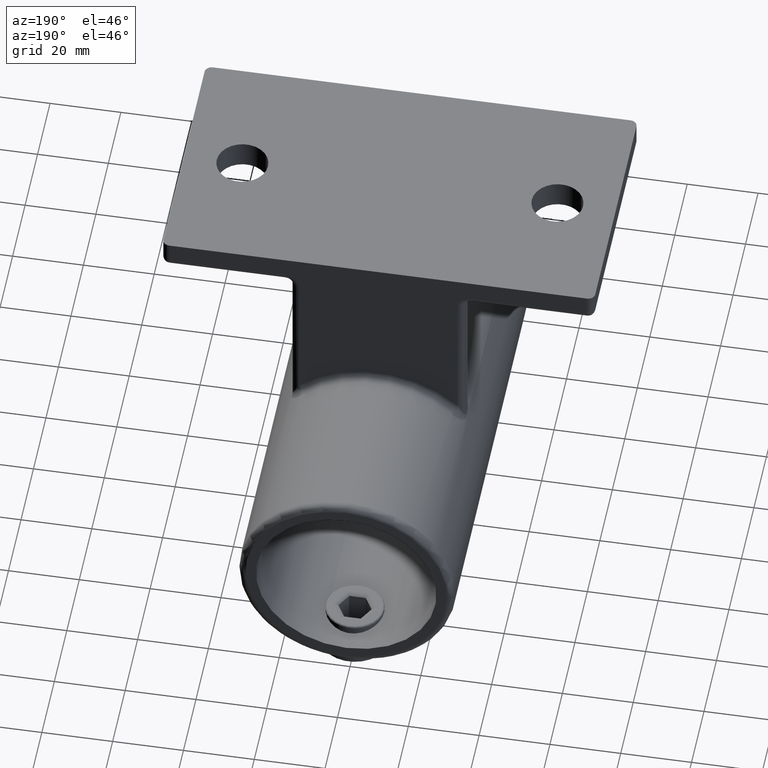
[diagram: clean part render]
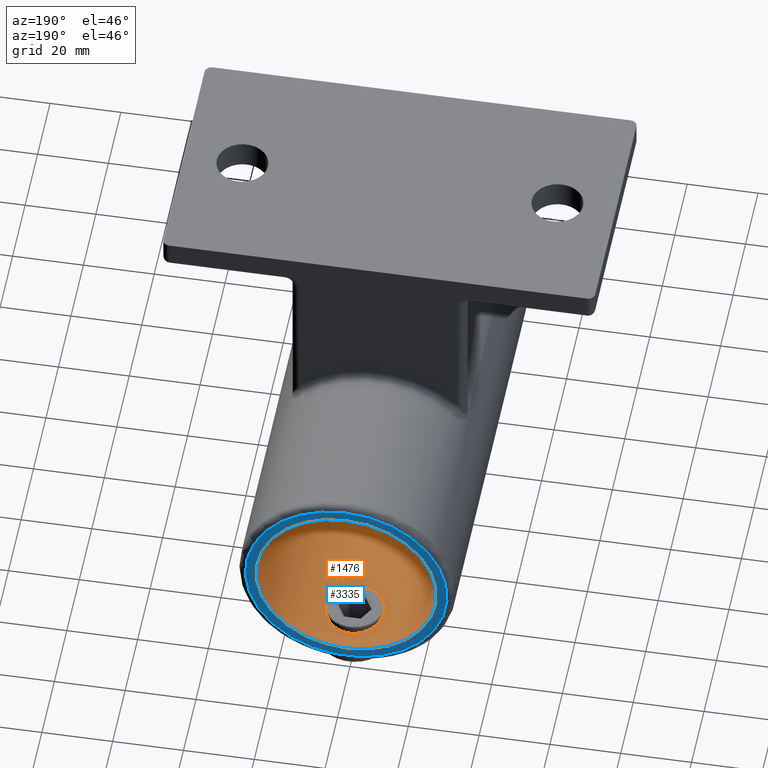
[diagram: same view with the hole feature highlighted: cylindrical wall and planar end face, labeled with their STEP entity ids]
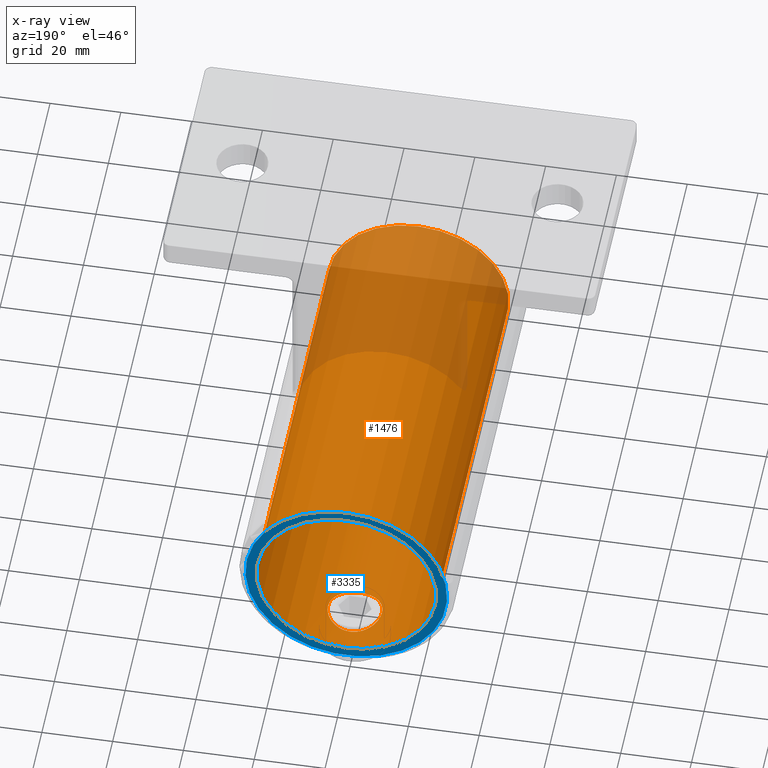
[diagram: x-ray of the same camera — body ghosted, the hole faces saturated]
A machine part, auxiliary view. The highlighted faces form one hole feature of diameter 51 mm: the cylindrical wall (entity #1476, orange) and its adjacent planar end face (entity #3335, blue) — they share a circular edge in the B-rep.
The next image is the same camera in x-ray (body ghosted, the hole faces saturated) — the bore reads through the body.
Wall:
#15 = CARTESIAN_POINT ( 'NONE',  ( 7.624891612867020108, -20.74700275049473319, -89.33333162361378754 ) ) ;
#30 = CARTESIAN_POINT ( 'NONE',  ( -0.9974324180357665437, -28.57606539360557463, -90.48523882857068656 ) ) ;
#40 = CARTESIAN_POINT ( 'NONE',  ( 7.231501422284150493, -18.53150173928762356, -89.45393393667220039 ) ) ;
#93 = CARTESIAN_POINT ( 'NONE',  ( 5.030519184703944546, 77.73553218351690930, -89.99964379070613063 ) ) ;
#106 = CARTESIAN_POINT ( 'NONE',  ( 0.000000000000000000, -107.1248916810278615, -65.00000000000000000 ) ) ;
#111 = CARTESIAN_POINT ( 'NONE',  ( 1.008463493251327669, 64.43779352519128167, -90.48128276262526981 ) ) ;
#135 = CARTESIAN_POINT ( 'NONE',  ( 4.646156678159544917, 78.05108922573663222, -90.07392153317583450 ) ) ;
#149 = CARTESIAN_POINT ( 'NONE',  ( 2.461404443702432054, 79.23422722003843433, -90.38521640956656711 ) ) ;
#157 = FACE_OUTER_BOUND ( 'NONE', #3196, .T. ) ;
#167 = CARTESIAN_POINT ( 'NONE',  ( 0.000000000000000000, -29.50000000000001066, -65.00000000000000000 ) ) ;
#170 = ORIENTED_EDGE ( 'NONE', *, *, #2403, .T. ) ;
#203 = CARTESIAN_POINT ( 'NONE',  ( -7.574942100616332219, 70.99450779540899248, -89.34914341673113825 ) ) ;
#335 = CARTESIAN_POINT ( 'NONE',  ( 6.612450441472209839, -24.82917298807455708, -89.62938855969416352 ) ) ;
#358 = CARTESIAN_POINT ( 'NONE',  ( -5.731320718952914284, -26.03533738364246020, -89.84810652984164392 ) ) ;
#390 = CARTESIAN_POINT ( 'NONE',  ( 6.057980454375973878, -16.34304914851603030, -89.77159739814007366 ) ) ;
#454 = DIRECTION ( 'NONE',  ( 0.000000000000000000, 0.000000000000000000, 1.000000000000000000 ) ) ;
#490 = DIRECTION ( 'NONE',  ( -0.000000000000000000, 1.000000000000000000, -0.000000000000000000 ) ) ;
#494 = CARTESIAN_POINT ( 'NONE',  ( 0.5076067184729372572, 64.38775323546190066, -90.49617824822861678 ) ) ;
#530 = CARTESIAN_POINT ( 'NONE',  ( 5.744499048155512710, 77.03875390049263672, -89.84713917004650341 ) ) ;
#537 = CARTESIAN_POINT ( 'NONE',  ( -7.229963574347745059, -23.47310003038138149, -89.45439297849438276 ) ) ;
#546 = CARTESIAN_POINT ( 'NONE',  ( 6.057980454375973878, 76.65695085148398391, -89.77159739814007366 ) ) ;
#559 = CARTESIAN_POINT ( 'NONE',  ( -6.047707569797676541, 67.34942015434441487, -89.77300281459778830 ) ) ;
#593 = CARTESIAN_POINT ( 'NONE',  ( -7.624999999999985789, -21.00000000000000355, -89.33329765979119941 ) ) ;
#644 = CARTESIAN_POINT ( 'NONE',  ( 3.384294973188239020, -14.16266294508901069, -90.27539681484161349 ) ) ;
#648 = FACE_BOUND ( 'NONE', #1730, .T. ) ;
#670 = CARTESIAN_POINT ( 'NONE',  ( -0.5055419019373907918, -13.37532755110277094, -90.49990205581651992 ) ) ;
#701 = CARTESIAN_POINT ( 'NONE',  ( -7.367487091279724787, -19.01913769795311637, -89.41261889050571199 ) ) ;
#744 = CARTESIAN_POINT ( 'NONE',  ( 4.447177274955105730, -14.80124720206607591, -90.11008063110793387 ) ) ;
#758 = CARTESIAN_POINT ( 'NONE',  ( -0.5004811210029580515, -28.62514008372730245, -90.50004188777967329 ) ) ;
#778 = CARTESIAN_POINT ( 'NONE',  ( 5.219153608787837406, -26.56443637731740992, -89.96082514928257012 ) ) ;
#800 = CARTESIAN_POINT ( 'NONE',  ( -3.385561470218382496, -27.85026706634075566, -90.27848677640909614 ) ) ;
#820 = CARTESIAN_POINT ( 'NONE',  ( 0.5076067184729309290, -28.61224676453810645, -90.49617824822863099 ) ) ;
#822 = CARTESIAN_POINT ( 'NONE',  ( -7.624999999999988454, 72.50688145325784717, -89.33329765979119941 ) ) ;
#855 = CARTESIAN_POINT ( 'NONE',  ( -7.135615412598226293, 74.69924512805724248, -89.48148177035005801 ) ) ;
#879 = CARTESIAN_POINT ( 'NONE',  ( 7.576396451412872324, 71.00316935675722618, -89.34869380119972959 ) ) ;
#891 = CARTESIAN_POINT ( 'NONE',  ( 3.833482231654511629, 65.39018077714516153, -90.21364877980187202 ) ) ;
#912 = CARTESIAN_POINT ( 'NONE',  ( 3.156698431691126405, 78.94542025999970747, -90.30493402501495837 ) ) ;
#927 = CARTESIAN_POINT ( 'NONE',  ( 6.060135082528143258, 67.34577295407311226, -89.77107273508418928 ) ) ;
#989 = AXIS2_PLACEMENT_3D ( 'NONE', #106, #490, #454 ) ;
#1011 = CARTESIAN_POINT ( 'NONE',  ( -2.461308623772315407, 64.77879215197810936, -90.38208609699563567 ) ) ;
#1033 = CARTESIAN_POINT ( 'NONE',  ( -6.197704974416610391, 67.55129930531029459, -89.73578094147724471 ) ) ;
#1119 = CARTESIAN_POINT ( 'NONE',  ( -5.565899422755160586, -15.78248597164851041, -89.88579375061704013 ) ) ;
#1138 = CARTESIAN_POINT ( 'NONE',  ( 7.525228072993259687, -19.74518199714250599, -89.36439231774539849 ) ) ;
#1159 = CARTESIAN_POINT ( 'NONE',  ( 0.2534350983388494738, -28.62492951201296876, -90.49997892271049693 ) ) ;
#1180 = CARTESIAN_POINT ( 'NONE',  ( -1.734486300691154170, -28.42932941737669594, -90.44213286395566342 ) ) ;
#1191 = CARTESIAN_POINT ( 'NONE',  ( 4.648698535536575527, -27.04913799475141190, -90.07345009098295918 ) ) ;
#1253 = CARTESIAN_POINT ( 'NONE',  ( -6.048925639400116516, 76.64900240137585286, -89.77270567541808077 ) ) ;
#1266 = CARTESIAN_POINT ( 'NONE',  ( 3.823181047867570292, 78.60196312798187535, -90.21274327177580687 ) ) ;
#1280 = CARTESIAN_POINT ( 'NONE',  ( -1.002260834043404936, 79.57553243386638542, -90.48507785264072822 ) ) ;
#1294 = CARTESIAN_POINT ( 'NONE',  ( 7.562884137812094565, 73.00330240941796944, -89.35268896931188465 ) ) ;
#1308 = CARTESIAN_POINT ( 'NONE',  ( 5.216723883842239395, 77.56671700517883039, -89.96133390831168697 ) ) ;
#1332 = CARTESIAN_POINT ( 'NONE',  ( -6.846902376609899754, -24.39242168543968603, -89.56439775525151958 ) ) ;
#1342 = CARTESIAN_POINT ( 'NONE',  ( -5.040258678787246538, 66.25711101025832761, -89.99947536923234281 ) ) ;
#1356 = CARTESIAN_POINT ( 'NONE',  ( -4.657661128770405057, 65.94207346199596032, -90.07458775284528940 ) ) ;
#1378 = CARTESIAN_POINT ( 'NONE',  ( -6.612811144317733536, 68.17131967213869359, -89.62929864426141080 ) ) ;
#1398 = CARTESIAN_POINT ( 'NONE',  ( -7.624999999999985789, 72.00000000000001421, -89.33329765979122783 ) ) ;
#1428 = CARTESIAN_POINT ( 'NONE',  ( -7.428368305047844622, -19.26155787811091002, -89.39409676136722283 ) ) ;
#1452 = CARTESIAN_POINT ( 'NONE',  ( -6.198735931921449449, -16.55274031513335586, -89.73552208070483971 ) ) ;
#1469 = CARTESIAN_POINT ( 'NONE',  ( -2.700709416218067371, -13.86498950948887199, -90.35762922896570615 ) ) ;
#1476 = ADVANCED_FACE ( 'NONE', ( #648, #2231, #4317, #157 ), #3003, .F. ) ;
#1531 = CARTESIAN_POINT ( 'NONE',  ( 7.377007636414916192, -19.00691535159158008, -89.40984310860254425 ) ) ;
#1566 = CARTESIAN_POINT ( 'NONE',  ( -2.696371600816386938, -28.13667256342307610, -90.35809654200686225 ) ) ;
#1584 = CARTESIAN_POINT ( 'NONE',  ( 1.255815356180157716, -28.52500336393955749, -90.47023465384457097 ) ) ;
#1626 = DIRECTION ( 'NONE',  ( 0.000000000000000000, 0.000000000000000000, 1.000000000000000000 ) ) ;
#1645 = CIRCLE ( 'NONE', #4625, 25.49999999999999645 ) ;
#1662 = CARTESIAN_POINT ( 'NONE',  ( 7.624891612867018331, 72.25299724950527036, -89.33333162361378754 ) ) ;
#1671 = DIRECTION ( 'NONE',  ( 0.000000000000000000, 0.000000000000000000, 1.000000000000000000 ) ) ;
#1675 = CARTESIAN_POINT ( 'NONE',  ( 5.219153608787845400, 66.43556362268260784, -89.96082514928257012 ) ) ;
#1692 = VERTEX_POINT ( 'NONE', #2478 ) ;
#1693 = CARTESIAN_POINT ( 'NONE',  ( 6.612450441472212503, 68.17082701192546779, -89.62938855969414931 ) ) ;
#1700 = CARTESIAN_POINT ( 'NONE',  ( -7.378703229295690669, -22.98632853656301123, -89.40932755342137739 ) ) ;
#1727 = CARTESIAN_POINT ( 'NONE',  ( 0.4956123546160094984, 79.62532431844962844, -90.50009697755686489 ) ) ;
#1728 = EDGE_LOOP ( 'NONE', ( #170 ) ) ;
#1730 = EDGE_LOOP ( 'NONE', ( #2654 ) ) ;
#1807 = CARTESIAN_POINT ( 'NONE',  ( -3.823840404061849441, 65.38407030761533179, -90.21521371572852388 ) ) ;
#1831 = CARTESIAN_POINT ( 'NONE',  ( 2.461404443702431610, -13.76577277996165272, -90.38521640956645342 ) ) ;
#1851 = CARTESIAN_POINT ( 'NONE',  ( -7.624999999999985789, -21.00000000000000355, -89.33329765979122783 ) ) ;
#1864 = CARTESIAN_POINT ( 'NONE',  ( 1.004140554346921066, -13.42489480268466906, -90.48495289417641629 ) ) ;
#1904 = CARTESIAN_POINT ( 'NONE',  ( 1.984536850028334909, -13.62083131415485759, -90.42740127819108409 ) ) ;
#1923 = CARTESIAN_POINT ( 'NONE',  ( -5.040258678787254532, -26.74288898974165107, -89.99947536923244229 ) ) ;
#1937 = CARTESIAN_POINT ( 'NONE',  ( 6.060135082528141481, -25.65422704592691261, -89.77107273508421770 ) ) ;
#2019 = B_SPLINE_CURVE_WITH_KNOTS ( 'NONE', 3,
 ( #3516, #822, #3530, #3549, #4654, #4667, #855, #3913, #2029, #4316, #1253, #4682, #2390, #2041, #3626, #3216, #4778, #3228, #2423, #2843, #3579, #1280, #2827, #1727, #3567, #2094, #149, #912, #3985, #1266, #3593, #4763, #135, #93, #1308, #530, #546, #4003, #2053, #4727, #2112, #2799, #1294, #4344, #1662, #3184, #879, #3937, #2469, #4710, #1693, #927, #2856, #1675, #2080, #2071, #4330, #891, #2435, #2446, #2812, #4395, #111, #494, #3203, #3957, #2479, #2936, #4087, #1011, #4468, #3688, #1807, #1356, #1342, #3329, #3674, #559, #1033, #1378, #3260, #4448, #3707, #203, #2161, #1398 ),
 .UNSPECIFIED., .T., .F.,
 ( 4, 2, 2, 2, 2, 2, 2, 2, 2, 2, 2, 2, 2, 2, 2, 2, 2, 2, 2, 2, 2, 2, 2, 2, 2, 2, 2, 2, 2, 2, 2, 2, 2, 2, 2, 2, 2, 2, 2, 2, 2, 2, 4 ),
 ( 0.000000000000000000, 0.001498341749482135464, 0.002247512624223224446, 0.002996683498964313429, 0.004495025248446491394, 0.005244196123187582978, 0.005993366997928674562, 0.007491708747410887222, 0.008990050496893099014, 0.009739221371634196669, 0.01048839224637529606, 0.01198673399585748443, 0.01348507574533967281, 0.01498341749482186291, 0.01573258836956295884, 0.01648175924430405476, 0.01723093011904515068, 0.01798010099378625007, 0.01947844274326844538, 0.02097678449275064416, 0.02247512624223283947, 0.02322429711697391805, 0.02397346799171499662, 0.02547180974119715377, 0.02697015149067930745, 0.02846849324016146460, 0.02996683498964362174, 0.03071600586438470032, 0.03146517673912577889, 0.03296351848860793604, 0.03446186023809009319, 0.03521103111283117176, 0.03596020198757225034, 0.03745854373705440749, 0.03820771461179547912, 0.03895688548653655076, 0.04045522723601872178, 0.04195356898550088587, 0.04270273986024196444, 0.04345191073498304302, 0.04495025248446515853, 0.04644859423394728098, 0.04794693598342939650 ),
 .UNSPECIFIED. ) ;
#2029 = CARTESIAN_POINT ( 'NONE',  ( -6.613573751901328457, 75.82734250642664620, -89.62909176691425728 ) ) ;
#2041 = CARTESIAN_POINT ( 'NONE',  ( -5.041644448777359955, 77.74166372519295010, -89.99919377064017567 ) ) ;
#2053 = CARTESIAN_POINT ( 'NONE',  ( 6.849470589490127992, 75.38715944817302272, -89.56367746171844146 ) ) ;
#2071 = CARTESIAN_POINT ( 'NONE',  ( 4.648698535536582632, 65.95086200524859521, -90.07345009098291655 ) ) ;
#2080 = CARTESIAN_POINT ( 'NONE',  ( 5.032976417855637763, 66.26662255462332496, -89.99914890384515331 ) ) ;
#2083 = CARTESIAN_POINT ( 'NONE',  ( -7.624999999999986677, -21.50688145325787559, -89.33329765979124204 ) ) ;
#2094 = CARTESIAN_POINT ( 'NONE',  ( 1.984536850028335797, 79.37916868584520103, -90.42740127819105567 ) ) ;
#2106 = CARTESIAN_POINT ( 'NONE',  ( -7.624999999999985789, 72.00000000000001421, -89.33329765979119941 ) ) ;
#2112 = CARTESIAN_POINT ( 'NONE',  ( 7.377007636414910863, 73.99308464840852650, -89.40984310860261530 ) ) ;
#2161 = CARTESIAN_POINT ( 'NONE',  ( -7.624999999999984013, 71.49311854674216704, -89.33329765979124204 ) ) ;
#2209 = CARTESIAN_POINT ( 'NONE',  ( -7.624999999999985789, -20.49311854674213862, -89.33329765979119941 ) ) ;
#2231 = FACE_BOUND ( 'NONE', #1728, .T. ) ;
#2245 = CARTESIAN_POINT ( 'NONE',  ( 3.823181047867569404, -14.39803687201811755, -90.21274327177586372 ) ) ;
#2260 = CARTESIAN_POINT ( 'NONE',  ( 3.156698431691130846, -14.05457974000032628, -90.30493402501495837 ) ) ;
#2274 = CARTESIAN_POINT ( 'NONE',  ( 7.612547758341651871, -20.49705981102999175, -89.33721005261251946 ) ) ;
#2294 = CARTESIAN_POINT ( 'NONE',  ( -4.657661128770406833, -27.05792653800408232, -90.07458775284531782 ) ) ;
#2295 = VERTEX_POINT ( 'NONE', #593 ) ;
#2320 = EDGE_CURVE ( 'NONE', #3783, #3783, #2019, .T. ) ;
#2330 = CARTESIAN_POINT ( 'NONE',  ( 7.562884137812089236, -19.99669759058200569, -89.35268896931188465 ) ) ;
#2343 = CARTESIAN_POINT ( 'NONE',  ( 6.851548141218173349, -24.38298063173942154, -89.56309619959866097 ) ) ;
#2362 = ORIENTED_EDGE ( 'NONE', *, *, #3799, .T. ) ;
#2390 = CARTESIAN_POINT ( 'NONE',  ( -5.565899422755154369, 77.21751402835153044, -89.88579375061704013 ) ) ;
#2403 = EDGE_CURVE ( 'NONE', #2295, #2295, #2806, .T. ) ;
#2423 = CARTESIAN_POINT ( 'NONE',  ( -2.466516904903025331, 79.21939075592824508, -90.38156951829363095 ) ) ;
#2435 = CARTESIAN_POINT ( 'NONE',  ( 3.395558282232824965, 65.15424537317076670, -90.27724604841974099 ) ) ;
#2446 = CARTESIAN_POINT ( 'NONE',  ( 2.465845790636773671, 64.76717365094441448, -90.38481018989878635 ) ) ;
#2469 = CARTESIAN_POINT ( 'NONE',  ( 7.233130550530671776, 69.53624426431233019, -89.45345025310641063 ) ) ;
#2478 = CARTESIAN_POINT ( 'NONE',  ( 0.000000000000000000, 86.00000000000000000, -39.50000000000000711 ) ) ;
#2479 = CARTESIAN_POINT ( 'NONE',  ( -0.9974324180357543312, 64.42393460639446801, -90.48523882857060130 ) ) ;
#2566 = CARTESIAN_POINT ( 'NONE',  ( -2.466516904903020002, -13.78060924407174426, -90.38156951829363095 ) ) ;
#2589 = CARTESIAN_POINT ( 'NONE',  ( -1.741506921088068482, -13.57228655622695435, -90.44166039446830041 ) ) ;
#2645 = CARTESIAN_POINT ( 'NONE',  ( -7.221195304307087781, -18.53869549285403906, -89.45629091890882023 ) ) ;
#2654 = ORIENTED_EDGE ( 'NONE', *, *, #2320, .T. ) ;
#2663 = CARTESIAN_POINT ( 'NONE',  ( 7.233130550530671776, -23.46375573568773731, -89.45345025310641063 ) ) ;
#2680 = CARTESIAN_POINT ( 'NONE',  ( 1.008463493251325671, -28.56220647480872188, -90.48128276262529823 ) ) ;
#2695 = CARTESIAN_POINT ( 'NONE',  ( 5.746575677620175071, -26.03637362977872627, -89.84665559148962188 ) ) ;
#2736 = CARTESIAN_POINT ( 'NONE',  ( 2.465845790636759904, -28.23282634905560684, -90.38481018989881477 ) ) ;
#2794 = CARTESIAN_POINT ( 'NONE',  ( 0.000000000000000000, 86.00000000000000000, -65.00000000000000000 ) ) ;
#2799 = CARTESIAN_POINT ( 'NONE',  ( 7.525228072993262352, 73.25481800285751888, -89.36439231774548375 ) ) ;
#2806 = B_SPLINE_CURVE_WITH_KNOTS ( 'NONE', 3,
 ( #1851, #2209, #3759, #1428, #701, #2645, #2962, #4868, #4526, #1452, #3725, #3802, #1119, #4103, #4890, #3399, #4181, #1469, #2566, #3776, #2589, #4145, #670, #4120, #1864, #1904, #1831, #2260, #644, #2245, #4497, #744, #3086, #3103, #4230, #3500, #390, #4617, #4638, #40, #1531, #1138, #2330, #2274, #15, #4213, #3820, #4966, #2663, #2343, #335, #1937, #2695, #778, #3064, #1191, #3430, #4194, #4604, #2736, #3468, #1584, #2680, #820, #1159, #758, #30, #1180, #3848, #3044, #1566, #800, #3483, #2294, #1923, #3865, #358, #4248, #4587, #3456, #1332, #537, #1700, #4765, #2083, #3221 ),
 .UNSPECIFIED., .T., .F.,
 ( 4, 2, 2, 2, 2, 2, 2, 2, 2, 2, 2, 2, 2, 2, 2, 2, 2, 2, 2, 2, 2, 2, 2, 2, 2, 2, 2, 2, 2, 2, 2, 2, 2, 2, 2, 2, 2, 2, 2, 2, 2, 2, 4 ),
 ( 0.000000000000000000, 0.001498341749482159100, 0.002247512624223240059, 0.002996683498964320801, 0.004495025248446490526, 0.005244196123187574304, 0.005993366997928658083, 0.007491708747410816965, 0.008990050496892975848, 0.009739221371634056157, 0.01048839224637513820, 0.01198673399585729882, 0.01348507574533945944, 0.01498341749482162352, 0.01573258836956270557, 0.01648175924430378761, 0.01723093011904486965, 0.01798010099378595170, 0.01947844274326811925, 0.02097678449275029028, 0.02247512624223246130, 0.02322429711697354682, 0.02397346799171463233, 0.02547180974119679989, 0.02697015149067896744, 0.02846849324016114194, 0.02996683498964330949, 0.03071600586438439501, 0.03146517673912548052, 0.03296351848860765155, 0.03446186023808982951, 0.03521103111283092196, 0.03596020198757200748, 0.03745854373705418544, 0.03820771461179527095, 0.03895688548653636341, 0.04045522723601854831, 0.04195356898550072627, 0.04270273986024181179, 0.04345191073498289730, 0.04495025248446506139, 0.04644859423394722547, 0.04794693598342938956 ),
 .UNSPECIFIED. ) ;
#2812 = CARTESIAN_POINT ( 'NONE',  ( 1.988934115304100914, 64.62211023195266080, -90.42702977557269151 ) ) ;
#2827 = CARTESIAN_POINT ( 'NONE',  ( -0.5055419019373901257, 79.62467244889728590, -90.49990205581659097 ) ) ;
#2843 = CARTESIAN_POINT ( 'NONE',  ( -1.987617512295528188, 79.36564220918792500, -90.42355509127237667 ) ) ;
#2856 = CARTESIAN_POINT ( 'NONE',  ( 5.746575677620189282, 66.96362637022129149, -89.84665559148965031 ) ) ;
#2936 = CARTESIAN_POINT ( 'NONE',  ( -1.734486300691147509, 64.57067058262333603, -90.44213286395564921 ) ) ;
#2962 = CARTESIAN_POINT ( 'NONE',  ( -7.135615412598227181, -18.30075487194274331, -89.48148177035008644 ) ) ;
#3003 = CYLINDRICAL_SURFACE ( 'NONE', #989, 25.49999999999999645 ) ;
#3030 = EDGE_CURVE ( 'NONE', #4265, #4265, #4303, .T. ) ;
#3044 = CARTESIAN_POINT ( 'NONE',  ( -2.461308623772326953, -28.22120784802192262, -90.38208609699564988 ) ) ;
#3064 = CARTESIAN_POINT ( 'NONE',  ( 5.032976417855629769, -26.73337744537669991, -89.99914890384516752 ) ) ;
#3086 = CARTESIAN_POINT ( 'NONE',  ( 4.646156678159546694, -14.94891077426336246, -90.07392153317589134 ) ) ;
#3103 = CARTESIAN_POINT ( 'NONE',  ( 5.030519184703942770, -15.26446781648309425, -89.99964379070610221 ) ) ;
#3184 = CARTESIAN_POINT ( 'NONE',  ( 7.625214647510676791, 71.50386952895688353, -89.33323039857886272 ) ) ;
#3192 = EDGE_LOOP ( 'NONE', ( #3273 ) ) ;
#3196 = EDGE_LOOP ( 'NONE', ( #2362 ) ) ;
#3203 = CARTESIAN_POINT ( 'NONE',  ( 0.2534350983388543033, 64.37507048798703124, -90.49997892271051114 ) ) ;
#3216 = CARTESIAN_POINT ( 'NONE',  ( -3.827054955045009255, 78.61402597357590594, -90.21471586216956950 ) ) ;
#3221 = CARTESIAN_POINT ( 'NONE',  ( -7.624999999999985789, -21.00000000000000355, -89.33329765979122783 ) ) ;
#3228 = CARTESIAN_POINT ( 'NONE',  ( -2.700709416218065151, 79.13501049051113512, -90.35762922896573457 ) ) ;
#3255 = DIRECTION ( 'NONE',  ( -0.000000000000000000, -1.000000000000000000, -0.000000000000000000 ) ) ;
#3260 = CARTESIAN_POINT ( 'NONE',  ( -6.846902376609890872, 68.60757831456032818, -89.56439775525149116 ) ) ;
#3273 = ORIENTED_EDGE ( 'NONE', *, *, #3030, .T. ) ;
#3329 = CARTESIAN_POINT ( 'NONE',  ( -5.564741350278820775, 66.78124844154338291, -89.88605327841248993 ) ) ;
#3399 = CARTESIAN_POINT ( 'NONE',  ( -3.827054955045004370, -14.38597402642413847, -90.21471586216955529 ) ) ;
#3430 = CARTESIAN_POINT ( 'NONE',  ( 4.449869650047048708, -27.19680989642235502, -90.10960130707961468 ) ) ;
#3456 = CARTESIAN_POINT ( 'NONE',  ( -6.612811144317736201, -24.82868032786132773, -89.62929864426135396 ) ) ;
#3468 = CARTESIAN_POINT ( 'NONE',  ( 1.988934115304094252, -28.37788976804733565, -90.42702977557274835 ) ) ;
#3483 = CARTESIAN_POINT ( 'NONE',  ( -3.823840404061852549, -27.61592969238466821, -90.21521371572853809 ) ) ;
#3500 = CARTESIAN_POINT ( 'NONE',  ( 5.744499048155516263, -15.96124609950739703, -89.84713917004644657 ) ) ;
#3516 = CARTESIAN_POINT ( 'NONE',  ( -7.624999999999985789, 72.00000000000001421, -89.33329765979122783 ) ) ;
#3530 = CARTESIAN_POINT ( 'NONE',  ( -7.574965365638959724, 73.00467480099858619, -89.34913447379422280 ) ) ;
#3542 = DIRECTION ( 'NONE',  ( 0.000000000000000000, 1.000000000000000000, 0.000000000000000000 ) ) ;
#3549 = CARTESIAN_POINT ( 'NONE',  ( -7.428368305047849951, 73.73844212188913616, -89.39409676136723704 ) ) ;
#3567 = CARTESIAN_POINT ( 'NONE',  ( 1.004140554346920400, 79.57510519731535226, -90.48495289417638787 ) ) ;
#3579 = CARTESIAN_POINT ( 'NONE',  ( -1.741506921088069815, 79.42771344377305809, -90.44166039446832883 ) ) ;
#3593 = CARTESIAN_POINT ( 'NONE',  ( 4.035689341270895625, 78.47418979529668093, -90.17949059366310394 ) ) ;
#3626 = CARTESIAN_POINT ( 'NONE',  ( -4.659664900866391513, 78.05633653454835041, -90.07420524464366451 ) ) ;
#3674 = CARTESIAN_POINT ( 'NONE',  ( -5.731320718952900073, 66.96466261635755757, -89.84810652984165813 ) ) ;
#3688 = CARTESIAN_POINT ( 'NONE',  ( -3.385561470218385605, 65.14973293365925144, -90.27848677640909614 ) ) ;
#3707 = CARTESIAN_POINT ( 'NONE',  ( -7.378703229295695998, 70.01367146343703496, -89.40932755342134897 ) ) ;
#3725 = CARTESIAN_POINT ( 'NONE',  ( -6.048925639400118293, -16.35099759862417201, -89.77270567541809498 ) ) ;
#3759 = CARTESIAN_POINT ( 'NONE',  ( -7.574965365638963277, -19.99532519900148841, -89.34913447379423701 ) ) ;
#3776 = CARTESIAN_POINT ( 'NONE',  ( -1.987617512295524191, -13.63435779081206078, -90.42355509127234825 ) ) ;
#3783 = VERTEX_POINT ( 'NONE', #2106 ) ;
#3799 = EDGE_CURVE ( 'NONE', #1692, #1692, #1645, .T. ) ;
#3802 = CARTESIAN_POINT ( 'NONE',  ( -5.732467156299652089, -15.96596136080223260, -89.84784232431118767 ) ) ;
#3820 = CARTESIAN_POINT ( 'NONE',  ( 7.576396451412867883, -21.99683064324281645, -89.34869380119975801 ) ) ;
#3848 = CARTESIAN_POINT ( 'NONE',  ( -1.980091979971813521, -28.36770783056988421, -90.42415329027905102 ) ) ;
#3865 = CARTESIAN_POINT ( 'NONE',  ( -5.564741350278818999, -26.21875155845662775, -89.88605327841243309 ) ) ;
#3913 = CARTESIAN_POINT ( 'NONE',  ( -6.847894662907174634, 75.39060319075070993, -89.56412356750593062 ) ) ;
#3937 = CARTESIAN_POINT ( 'NONE',  ( 7.378859189773004701, 70.01306981053892287, -89.40928327647222318 ) ) ;
#3957 = CARTESIAN_POINT ( 'NONE',  ( -0.5004811210029529445, 64.37485991627269755, -90.50004188777970171 ) ) ;
#3985 = CARTESIAN_POINT ( 'NONE',  ( 3.384294973188242572, 78.83733705491098931, -90.27539681484159928 ) ) ;
#4003 = CARTESIAN_POINT ( 'NONE',  ( 6.609912202972775930, 75.83345524138866267, -89.63006750924832033 ) ) ;
#4087 = CARTESIAN_POINT ( 'NONE',  ( -1.980091979971797533, 64.63229216943011579, -90.42415329027906523 ) ) ;
#4103 = CARTESIAN_POINT ( 'NONE',  ( -5.041644448777362619, -15.25833627480707300, -89.99919377064020409 ) ) ;
#4120 = CARTESIAN_POINT ( 'NONE',  ( 0.4956123546160104976, -13.37467568155039288, -90.50009697755685067 ) ) ;
#4145 = CARTESIAN_POINT ( 'NONE',  ( -1.002260834043402937, -13.42446756613361636, -90.48507785264072822 ) ) ;
#4181 = CARTESIAN_POINT ( 'NONE',  ( -3.388025686781186430, -14.15104160124164778, -90.27813378799744726 ) ) ;
#4194 = CARTESIAN_POINT ( 'NONE',  ( 3.833482231654509409, -27.60981922285484202, -90.21364877980188623 ) ) ;
#4213 = CARTESIAN_POINT ( 'NONE',  ( 7.625214647510675903, -21.49613047104311647, -89.33323039857883430 ) ) ;
#4230 = CARTESIAN_POINT ( 'NONE',  ( 5.216723883842244724, -15.43328299482119093, -89.96133390831168697 ) ) ;
#4248 = CARTESIAN_POINT ( 'NONE',  ( -6.047707569797685423, -25.65057984565557803, -89.77300281459778830 ) ) ;
#4265 = VERTEX_POINT ( 'NONE', #4394 ) ;
#4303 = CIRCLE ( 'NONE', #4742, 25.49999999999999645 ) ;
#4316 = CARTESIAN_POINT ( 'NONE',  ( -6.198735931921449449, 76.44725968486665124, -89.73552208070486813 ) ) ;
#4317 = FACE_OUTER_BOUND ( 'NONE', #3192, .T. ) ;
#4330 = CARTESIAN_POINT ( 'NONE',  ( 4.449869650047054925, 65.80319010357766274, -90.10960130707958626 ) ) ;
#4344 = CARTESIAN_POINT ( 'NONE',  ( 7.612547758341652759, 72.50294018897002957, -89.33721005261251946 ) ) ;
#4394 = CARTESIAN_POINT ( 'NONE',  ( 0.000000000000000000, -29.50000000000001066, -39.50000000000000711 ) ) ;
#4395 = CARTESIAN_POINT ( 'NONE',  ( 1.255815356180169928, 64.47499663606049580, -90.47023465384449992 ) ) ;
#4448 = CARTESIAN_POINT ( 'NONE',  ( -7.229963574347746835, 69.52689996961859720, -89.45439297849438276 ) ) ;
#4468 = CARTESIAN_POINT ( 'NONE',  ( -2.696371600816382941, 64.86332743657695232, -90.35809654200683383 ) ) ;
#4497 = CARTESIAN_POINT ( 'NONE',  ( 4.035689341270893848, -14.52581020470335993, -90.17949059366314657 ) ) ;
#4526 = CARTESIAN_POINT ( 'NONE',  ( -6.613573751901333786, -17.17265749357343196, -89.62909176691434254 ) ) ;
#4587 = CARTESIAN_POINT ( 'NONE',  ( -6.197704974416621049, -25.44870069468970897, -89.73578094147728734 ) ) ;
#4604 = CARTESIAN_POINT ( 'NONE',  ( 3.395558282232820080, -27.84575462682926883, -90.27724604841975520 ) ) ;
#4617 = CARTESIAN_POINT ( 'NONE',  ( 6.609912202972774153, -17.16654475861134443, -89.63006750924836297 ) ) ;
#4625 = AXIS2_PLACEMENT_3D ( 'NONE', #2794, #3542, #1626 ) ;
#4638 = CARTESIAN_POINT ( 'NONE',  ( 6.849470589490128880, -17.61284055182702701, -89.56367746171845567 ) ) ;
#4654 = CARTESIAN_POINT ( 'NONE',  ( -7.367487091279723010, 73.98086230204690139, -89.41261889050574041 ) ) ;
#4667 = CARTESIAN_POINT ( 'NONE',  ( -7.221195304307087781, 74.46130450714598226, -89.45629091890883444 ) ) ;
#4682 = CARTESIAN_POINT ( 'NONE',  ( -5.732467156299652977, 77.03403863919777450, -89.84784232431123030 ) ) ;
#4710 = CARTESIAN_POINT ( 'NONE',  ( 6.851548141218178678, 68.61701936826057135, -89.56309619959867518 ) ) ;
#4727 = CARTESIAN_POINT ( 'NONE',  ( 7.231501422284149605, 74.46849826071237999, -89.45393393667214355 ) ) ;
#4742 = AXIS2_PLACEMENT_3D ( 'NONE', #167, #3255, #1671 ) ;
#4763 = CARTESIAN_POINT ( 'NONE',  ( 4.447177274955110171, 78.19875279793392053, -90.11008063110793387 ) ) ;
#4765 = CARTESIAN_POINT ( 'NONE',  ( -7.574942100616333107, -22.00549220459105371, -89.34914341673115246 ) ) ;
#4778 = CARTESIAN_POINT ( 'NONE',  ( -3.388025686781189094, 78.84895839875844104, -90.27813378799741884 ) ) ;
#4868 = CARTESIAN_POINT ( 'NONE',  ( -6.847894662907176411, -17.60939680924927941, -89.56412356750593062 ) ) ;
#4890 = CARTESIAN_POINT ( 'NONE',  ( -4.659664900866387072, -14.94366346545169932, -90.07420524464360767 ) ) ;
#4966 = CARTESIAN_POINT ( 'NONE',  ( 7.378859189773004701, -22.98693018946110200, -89.40928327647220897 ) ) ;
End face:
#107 = FACE_OUTER_BOUND ( 'NONE', #2893, .T. ) ;
#130 = ORIENTED_EDGE ( 'NONE', *, *, #3799, .F. ) ;
#1001 = CARTESIAN_POINT ( 'NONE',  ( 0.000000000000000000, 86.00000000000000000, -65.00000000000000000 ) ) ;
#1073 = DIRECTION ( 'NONE',  ( 0.000000000000000000, 1.000000000000000000, 0.000000000000000000 ) ) ;
#1094 = EDGE_CURVE ( 'NONE', #2717, #2717, #3547, .T. ) ;
#1269 = DIRECTION ( 'NONE',  ( 0.000000000000000000, -0.000000000000000000, 1.000000000000000000 ) ) ;
#1626 = DIRECTION ( 'NONE',  ( 0.000000000000000000, 0.000000000000000000, 1.000000000000000000 ) ) ;
#1645 = CIRCLE ( 'NONE', #4625, 25.49999999999999645 ) ;
#1692 = VERTEX_POINT ( 'NONE', #2478 ) ;
#2384 = CARTESIAN_POINT ( 'NONE',  ( 0.000000000000000000, 86.00000000000000000, -65.00000000000000000 ) ) ;
#2478 = CARTESIAN_POINT ( 'NONE',  ( 0.000000000000000000, 86.00000000000000000, -39.50000000000000711 ) ) ;
#2493 = CARTESIAN_POINT ( 'NONE',  ( 0.000000000000000000, 86.00000000000000000, -36.50000000000000711 ) ) ;
#2598 = DIRECTION ( 'NONE',  ( 0.000000000000000000, 0.000000000000000000, 1.000000000000000000 ) ) ;
#2717 = VERTEX_POINT ( 'NONE', #2493 ) ;
#2794 = CARTESIAN_POINT ( 'NONE',  ( 0.000000000000000000, 86.00000000000000000, -65.00000000000000000 ) ) ;
#2893 = EDGE_LOOP ( 'NONE', ( #3366 ) ) ;
#3172 = DIRECTION ( 'NONE',  ( 0.000000000000000000, 1.000000000000000000, 0.000000000000000000 ) ) ;
#3189 = PLANE ( 'NONE',  #3750 ) ;
#3335 = ADVANCED_FACE ( 'NONE', ( #107, #4856 ), #3189, .T. ) ;
#3366 = ORIENTED_EDGE ( 'NONE', *, *, #1094, .T. ) ;
#3542 = DIRECTION ( 'NONE',  ( 0.000000000000000000, 1.000000000000000000, 0.000000000000000000 ) ) ;
#3547 = CIRCLE ( 'NONE', #3958, 28.49999999999999645 ) ;
#3750 = AXIS2_PLACEMENT_3D ( 'NONE', #2384, #3172, #1269 ) ;
#3799 = EDGE_CURVE ( 'NONE', #1692, #1692, #1645, .T. ) ;
#3958 = AXIS2_PLACEMENT_3D ( 'NONE', #1001, #1073, #2598 ) ;
#4625 = AXIS2_PLACEMENT_3D ( 'NONE', #2794, #3542, #1626 ) ;
#4842 = EDGE_LOOP ( 'NONE', ( #130 ) ) ;
#4856 = FACE_BOUND ( 'NONE', #4842, .T. ) ;